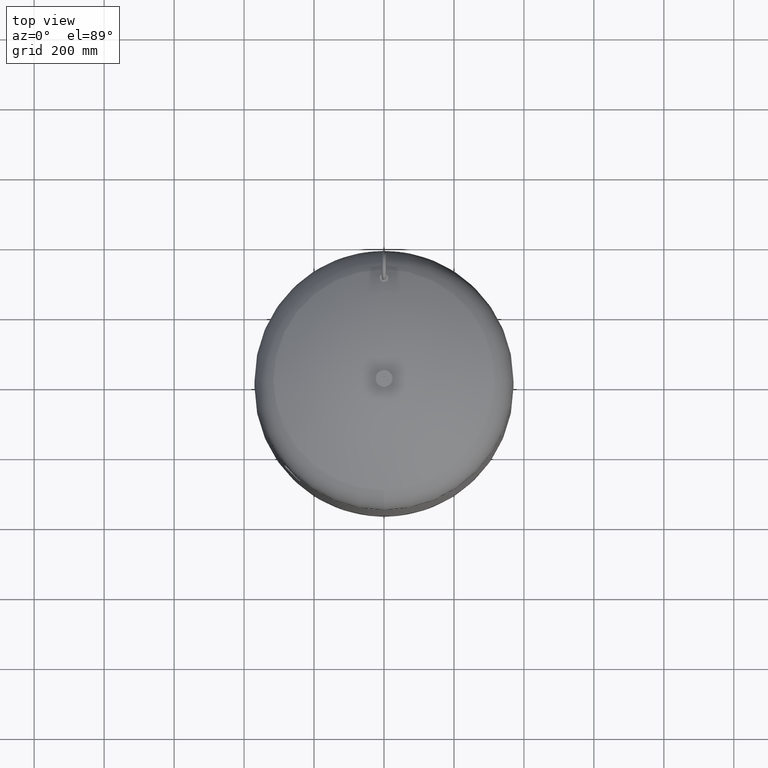
[diagram: clean part render]
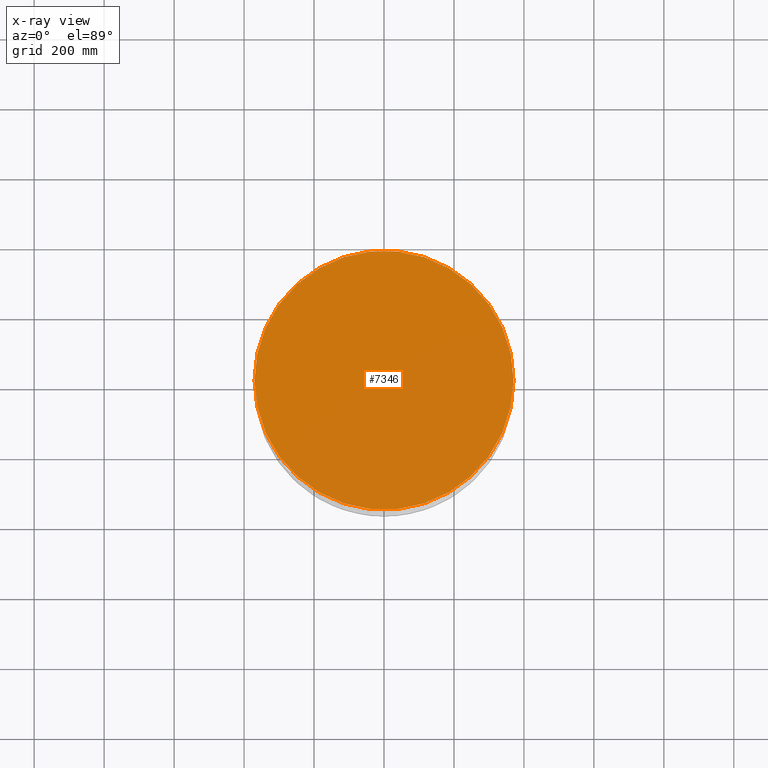
[diagram: x-ray — body ghosted, one internal face saturated and labeled with its STEP entity id]
A machine part, top view, then the same camera in x-ray: the body is ghosted and one INTERNAL B-rep face — a face not visible from any outside direction — is saturated and labeled: STEP entity #7346.
In plain terms, the highlighted planar face has unit normal (0, 0, 1).
Its self-contained STEP definition (entity closure, byte-faithful):
#7006=CARTESIAN_POINT('',(370.0,0.0,1496.0));
#7007=VERTEX_POINT('',#7006);
#7016=CARTESIAN_POINT('',(-369.999999999999890,-4.531044E-014,1496.0));
#7017=VERTEX_POINT('',#7016);
#7018=CARTESIAN_POINT('',(1.668796E-014,0.0,1496.0));
#7019=DIRECTION('',(0.0,0.0,1.0));
#7020=DIRECTION('',(1.0,0.0,0.0));
#7021=AXIS2_PLACEMENT_3D('',#7018,#7019,#7020);
#7022=CIRCLE('',#7021,370.0);
#7023=EDGE_CURVE('',#7017,#7007,#7022,.T.);
#7327=CARTESIAN_POINT('',(1.668796E-014,0.0,1496.0));
#7328=DIRECTION('',(0.0,0.0,1.0));
#7329=DIRECTION('',(1.0,0.0,0.0));
#7330=AXIS2_PLACEMENT_3D('',#7327,#7328,#7329);
#7331=CIRCLE('',#7330,370.0);
#7332=EDGE_CURVE('',#7007,#7017,#7331,.T.);
#7337=CARTESIAN_POINT('',(185.0,0.0,1496.0));
#7338=DIRECTION('',(0.0,0.0,1.0));
#7339=DIRECTION('',(1.0,0.0,0.0));
#7340=AXIS2_PLACEMENT_3D('',#7337,#7338,#7339);
#7341=PLANE('',#7340);
#7342=ORIENTED_EDGE('',*,*,#7332,.T.);
#7343=ORIENTED_EDGE('',*,*,#7023,.T.);
#7344=EDGE_LOOP('',(#7342,#7343));
#7345=FACE_OUTER_BOUND('',#7344,.T.);
#7346=ADVANCED_FACE('',(#7345),#7341,.T.);